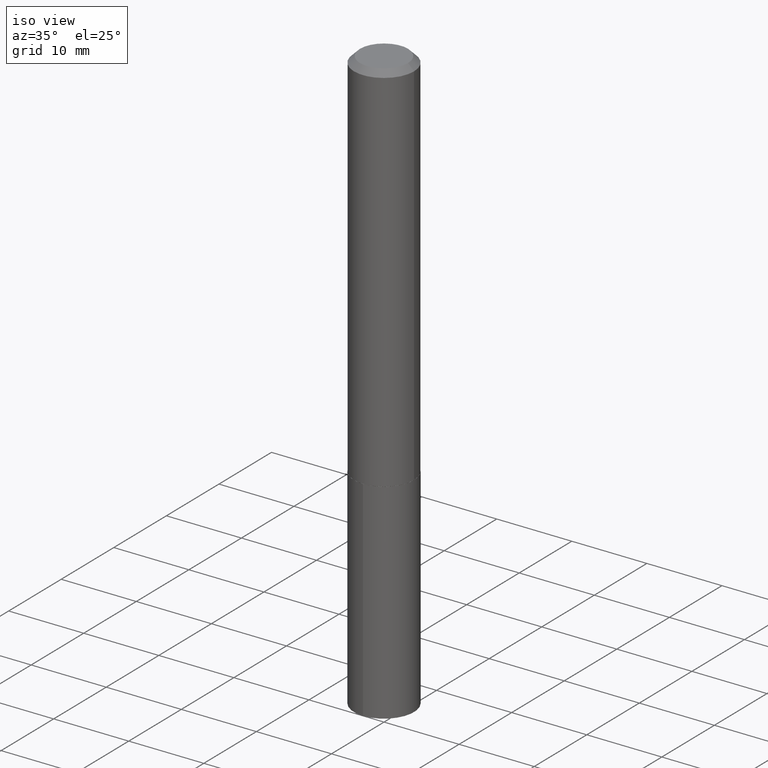
[diagram: clean part render]
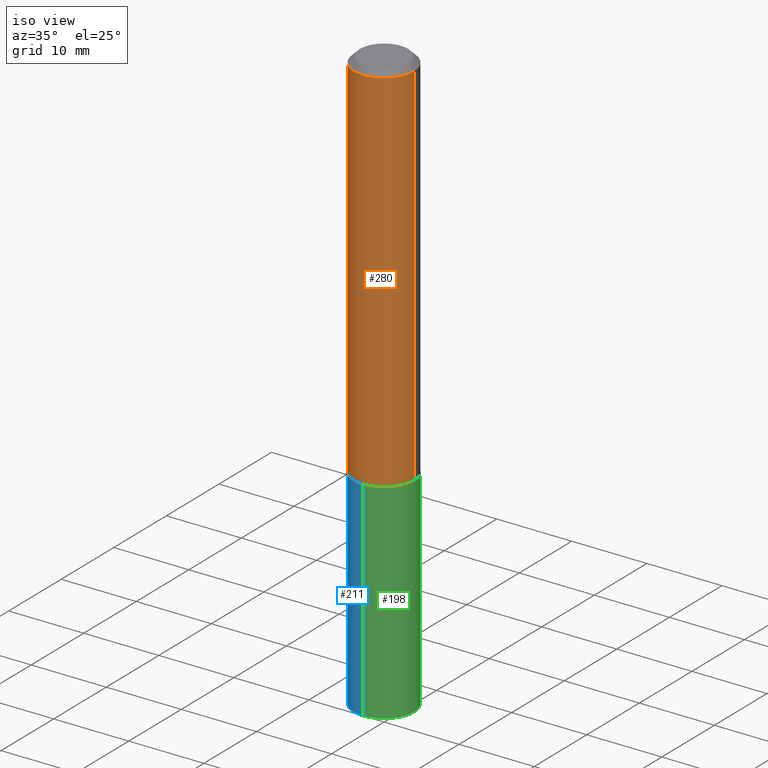
[diagram: same view with three faces highlighted in distinct colors, each labeled with its STEP entity id]
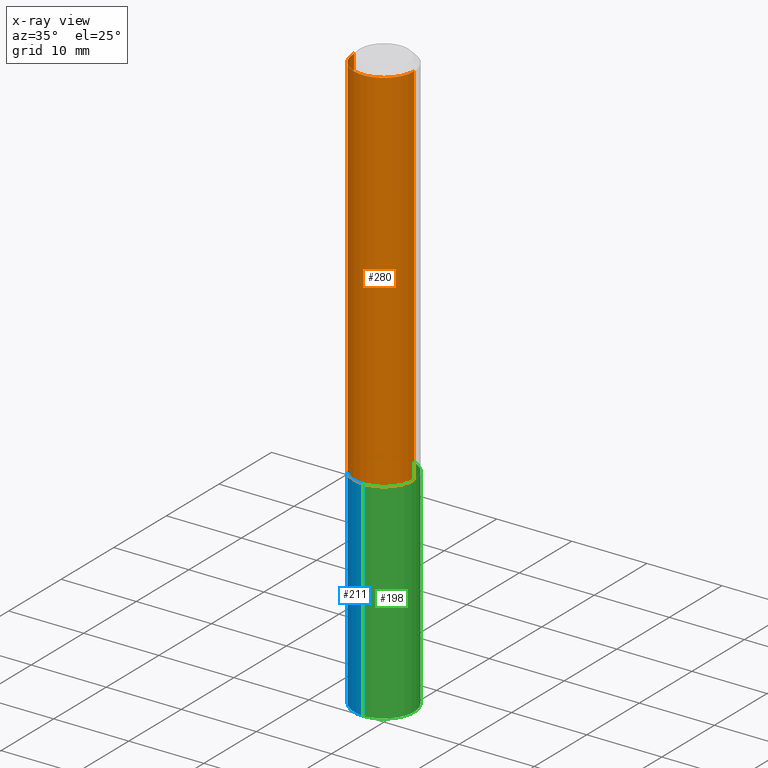
[diagram: x-ray of the same camera — body ghosted, the three highlighted faces saturated]
A machine part, iso view with three faces highlighted in distinct colors.
The next image is the same camera in x-ray (body ghosted, the three faces saturated) — at least one of them is partly hidden behind the body in this view.
Their STEP definitions:

[orange] entity #280 — the highlighted cylindrical surface (partial cylindrical patch) has radius 4.0005 mm, axis along (-0, 0, 1).
#16 = CARTESIAN_POINT ( 'NONE',  ( -0.1575000000000002232, -5.752130466021151811E-15, -1.968000000000000194 ) ) ;
#26 = ORIENTED_EDGE ( 'NONE', *, *, #340, .T. ) ;
#71 = DIRECTION ( 'NONE',  ( 1.000000000000000000, -6.982962677686267499E-15, 4.876176775795936353E-29 ) ) ;
#79 = EDGE_CURVE ( 'NONE', #283, #286, #349, .T. ) ;
#94 = LINE ( 'NONE', #386, #234 ) ;
#101 = EDGE_LOOP ( 'NONE', ( #195, #390, #26, #308 ) ) ;
#136 = VECTOR ( 'NONE', #201, 39.37007874015748143 ) ;
#146 = CARTESIAN_POINT ( 'NONE',  ( 4.812682610572349594E-29, -6.871235274843310993E-15, -1.968000000000000194 ) ) ;
#153 = CARTESIAN_POINT ( 'NONE',  ( 0.1575000000000000011, -1.208925413574435989E-15, -0.03125000000000021511 ) ) ;
#165 = DIRECTION ( 'NONE',  ( 1.000000000000000000, -6.982962677686265922E-15, 0.000000000000000000 ) ) ;
#188 = AXIS2_PLACEMENT_3D ( 'NONE', #146, #265, #322 ) ;
#195 = ORIENTED_EDGE ( 'NONE', *, *, #253, .F. ) ;
#196 = AXIS2_PLACEMENT_3D ( 'NONE', #215, #221, #71 ) ;
#201 = DIRECTION ( 'NONE',  ( -2.445468806185136877E-29, 3.491481338843145188E-15, 1.000000000000000000 ) ) ;
#215 = CARTESIAN_POINT ( 'NONE',  ( 0.000000000000000000, 0.000000000000000000, 0.000000000000000000 ) ) ;
#220 = CYLINDRICAL_SURFACE ( 'NONE', #196, 0.1575000000000000844 ) ;
#221 = DIRECTION ( 'NONE',  ( -2.445468806185136597E-29, 3.491481338843145583E-15, 1.000000000000000000 ) ) ;
#231 = CARTESIAN_POINT ( 'NONE',  ( -0.1575000000000000011, -2.371067224518920865E-15, -0.03125000000000021511 ) ) ;
#233 = CARTESIAN_POINT ( 'NONE',  ( 7.642090019328604414E-31, -1.091087918388490513E-16, -0.03125000000000021511 ) ) ;
#234 = VECTOR ( 'NONE', #358, 39.37007874015748143 ) ;
#253 = EDGE_CURVE ( 'NONE', #283, #372, #94, .T. ) ;
#260 = VERTEX_POINT ( 'NONE', #153 ) ;
#265 = DIRECTION ( 'NONE',  ( -2.445468806185136597E-29, 3.491481338843145583E-15, 1.000000000000000000 ) ) ;
#273 = CARTESIAN_POINT ( 'NONE',  ( 0.1575000000000002232, -7.971051896578899262E-15, -1.968000000000000194 ) ) ;
#280 = ADVANCED_FACE ( 'NONE', ( #330 ), #220, .T. ) ;
#283 = VERTEX_POINT ( 'NONE', #16 ) ;
#286 = VERTEX_POINT ( 'NONE', #273 ) ;
#308 = ORIENTED_EDGE ( 'NONE', *, *, #360, .F. ) ;
#312 = AXIS2_PLACEMENT_3D ( 'NONE', #233, #345, #165 ) ;
#319 = LINE ( 'NONE', #375, #136 ) ;
#322 = DIRECTION ( 'NONE',  ( 1.000000000000000000, -6.982962677686265133E-15, 0.000000000000000000 ) ) ;
#330 = FACE_OUTER_BOUND ( 'NONE', #101, .T. ) ;
#340 = EDGE_CURVE ( 'NONE', #286, #260, #319, .T. ) ;
#345 = DIRECTION ( 'NONE',  ( -2.445468806185136597E-29, 3.491481338843145583E-15, 1.000000000000000000 ) ) ;
#349 = CIRCLE ( 'NONE', #188, 0.1575000000000002232 ) ;
#350 = CIRCLE ( 'NONE', #312, 0.1575000000000000011 ) ;
#358 = DIRECTION ( 'NONE',  ( -2.445468806185136877E-29, 3.491481338843145188E-15, 1.000000000000000000 ) ) ;
#360 = EDGE_CURVE ( 'NONE', #372, #260, #350, .T. ) ;
#372 = VERTEX_POINT ( 'NONE', #231 ) ;
#375 = CARTESIAN_POINT ( 'NONE',  ( 0.1575000000000000844, -1.099816621735587677E-15, 7.679978421878603638E-30 ) ) ;
#386 = CARTESIAN_POINT ( 'NONE',  ( -0.1575000000000000844, 1.119104808822158392E-15, -7.747322767151481189E-30 ) ) ;
#390 = ORIENTED_EDGE ( 'NONE', *, *, #79, .T. ) ;

[blue] entity #211 — the highlighted cylindrical surface (partial cylindrical patch) has radius 4.0005 mm, axis along (-0, 0, 1).
#11 = VECTOR ( 'NONE', #104, 39.37007874015748143 ) ;
#27 = CIRCLE ( 'NONE', #342, 0.1575000000000000011 ) ;
#41 = EDGE_CURVE ( 'NONE', #174, #339, #202, .T. ) ;
#47 = DIRECTION ( 'NONE',  ( -2.445414923348069265E-29, 3.491558502132646561E-15, 1.000000000000000000 ) ) ;
#51 = DIRECTION ( 'NONE',  ( -6.982962677686264344E-15, -1.000000000000000000, 3.469013325287953293E-15 ) ) ;
#55 = EDGE_CURVE ( 'NONE', #362, #174, #27, .T. ) ;
#69 = CIRCLE ( 'NONE', #199, 0.1575000000000000011 ) ;
#74 = EDGE_LOOP ( 'NONE', ( #247, #365, #103, #192 ) ) ;
#83 = CARTESIAN_POINT ( 'NONE',  ( -1.099816621735538768E-15, -0.1575000000000068567, -1.968499999999999472 ) ) ;
#102 = EDGE_CURVE ( 'NONE', #144, #339, #69, .T. ) ;
#103 = ORIENTED_EDGE ( 'NONE', *, *, #41, .T. ) ;
#104 = DIRECTION ( 'NONE',  ( -2.445414923348069265E-29, 3.491558502132646561E-15, 1.000000000000000000 ) ) ;
#115 = DIRECTION ( 'NONE',  ( -2.445414923348069265E-29, 3.491558502132646561E-15, 1.000000000000000000 ) ) ;
#124 = CARTESIAN_POINT ( 'NONE',  ( 1.119104808822232742E-15, 0.1574999999999931177, -1.968500000000000583 ) ) ;
#139 = CARTESIAN_POINT ( 'NONE',  ( 1.119104808822232742E-15, 0.1574999999999893430, -3.067998002192100060 ) ) ;
#140 = DIRECTION ( 'NONE',  ( -2.445414923348069265E-29, 3.491558502132646561E-15, 1.000000000000000000 ) ) ;
#144 = VERTEX_POINT ( 'NONE', #124 ) ;
#156 = VECTOR ( 'NONE', #47, 39.37007874015748143 ) ;
#174 = VERTEX_POINT ( 'NONE', #281 ) ;
#183 = CYLINDRICAL_SURFACE ( 'NONE', #216, 0.1575000000000000011 ) ;
#187 = DIRECTION ( 'NONE',  ( -2.445414923348069265E-29, 3.491558502132646561E-15, 1.000000000000000000 ) ) ;
#192 = ORIENTED_EDGE ( 'NONE', *, *, #102, .F. ) ;
#199 = AXIS2_PLACEMENT_3D ( 'NONE', #344, #115, #315 ) ;
#200 = CARTESIAN_POINT ( 'NONE',  ( 7.502634167727390429E-29, -1.071194261314441830E-14, -3.067998002192099616 ) ) ;
#202 = LINE ( 'NONE', #83, #156 ) ;
#211 = ADVANCED_FACE ( 'NONE', ( #299 ), #183, .T. ) ;
#216 = AXIS2_PLACEMENT_3D ( 'NONE', #258, #187, #277 ) ;
#238 = CARTESIAN_POINT ( 'NONE',  ( -1.099816621735538768E-15, -0.1575000000000068567, -1.968499999999999472 ) ) ;
#247 = ORIENTED_EDGE ( 'NONE', *, *, #366, .F. ) ;
#258 = CARTESIAN_POINT ( 'NONE',  ( 4.813905344975441835E-29, -6.872981015512731707E-15, -1.968500000000000139 ) ) ;
#263 = CARTESIAN_POINT ( 'NONE',  ( 1.119104808822205527E-15, 0.1574999999999931177, -1.968500000000000583 ) ) ;
#277 = DIRECTION ( 'NONE',  ( -6.982962677686264344E-15, -1.000000000000000000, 3.469013325287953293E-15 ) ) ;
#281 = CARTESIAN_POINT ( 'NONE',  ( -1.099816621735512341E-15, -0.1575000000000107425, -3.067998002192099172 ) ) ;
#288 = LINE ( 'NONE', #263, #11 ) ;
#299 = FACE_OUTER_BOUND ( 'NONE', #74, .T. ) ;
#315 = DIRECTION ( 'NONE',  ( -6.982962677686264344E-15, -1.000000000000000000, 3.469013325287953293E-15 ) ) ;
#339 = VERTEX_POINT ( 'NONE', #238 ) ;
#342 = AXIS2_PLACEMENT_3D ( 'NONE', #200, #140, #51 ) ;
#344 = CARTESIAN_POINT ( 'NONE',  ( 4.813905344975441835E-29, -6.872981015512731707E-15, -1.968500000000000139 ) ) ;
#362 = VERTEX_POINT ( 'NONE', #139 ) ;
#365 = ORIENTED_EDGE ( 'NONE', *, *, #55, .T. ) ;
#366 = EDGE_CURVE ( 'NONE', #362, #144, #288, .T. ) ;

[green] entity #198 — the highlighted cylindrical surface (partial cylindrical patch) has radius 4.0005 mm, axis along (-0, 0, 1).
#11 = VECTOR ( 'NONE', #104, 39.37007874015748143 ) ;
#22 = DIRECTION ( 'NONE',  ( -6.982962677686264344E-15, -1.000000000000000000, 3.469013325287953293E-15 ) ) ;
#28 = AXIS2_PLACEMENT_3D ( 'NONE', #57, #177, #138 ) ;
#41 = EDGE_CURVE ( 'NONE', #174, #339, #202, .T. ) ;
#45 = DIRECTION ( 'NONE',  ( -2.445414923348069265E-29, 3.491558502132646561E-15, 1.000000000000000000 ) ) ;
#47 = DIRECTION ( 'NONE',  ( -2.445414923348069265E-29, 3.491558502132646561E-15, 1.000000000000000000 ) ) ;
#57 = CARTESIAN_POINT ( 'NONE',  ( 4.813905344975441835E-29, -6.872981015512731707E-15, -1.968500000000000139 ) ) ;
#82 = DIRECTION ( 'NONE',  ( -6.982962677686264344E-15, -1.000000000000000000, 3.469013325287953293E-15 ) ) ;
#83 = CARTESIAN_POINT ( 'NONE',  ( -1.099816621735538768E-15, -0.1575000000000068567, -1.968499999999999472 ) ) ;
#104 = DIRECTION ( 'NONE',  ( -2.445414923348069265E-29, 3.491558502132646561E-15, 1.000000000000000000 ) ) ;
#112 = EDGE_CURVE ( 'NONE', #339, #144, #222, .T. ) ;
#120 = DIRECTION ( 'NONE',  ( -2.445414923348069265E-29, 3.491558502132646561E-15, 1.000000000000000000 ) ) ;
#124 = CARTESIAN_POINT ( 'NONE',  ( 1.119104808822232742E-15, 0.1574999999999931177, -1.968500000000000583 ) ) ;
#138 = DIRECTION ( 'NONE',  ( -6.982962677686264344E-15, -1.000000000000000000, 3.469013325287953293E-15 ) ) ;
#139 = CARTESIAN_POINT ( 'NONE',  ( 1.119104808822232742E-15, 0.1574999999999893430, -3.067998002192100060 ) ) ;
#142 = CIRCLE ( 'NONE', #228, 0.1575000000000000011 ) ;
#144 = VERTEX_POINT ( 'NONE', #124 ) ;
#148 = ORIENTED_EDGE ( 'NONE', *, *, #380, .T. ) ;
#155 = CARTESIAN_POINT ( 'NONE',  ( 4.813905344975441835E-29, -6.872981015512731707E-15, -1.968500000000000139 ) ) ;
#156 = VECTOR ( 'NONE', #47, 39.37007874015748143 ) ;
#161 = AXIS2_PLACEMENT_3D ( 'NONE', #155, #120, #22 ) ;
#174 = VERTEX_POINT ( 'NONE', #281 ) ;
#177 = DIRECTION ( 'NONE',  ( -2.445414923348069265E-29, 3.491558502132646561E-15, 1.000000000000000000 ) ) ;
#198 = ADVANCED_FACE ( 'NONE', ( #325 ), #383, .T. ) ;
#202 = LINE ( 'NONE', #83, #156 ) ;
#222 = CIRCLE ( 'NONE', #28, 0.1575000000000000011 ) ;
#225 = EDGE_LOOP ( 'NONE', ( #148, #334, #335, #232 ) ) ;
#228 = AXIS2_PLACEMENT_3D ( 'NONE', #293, #45, #82 ) ;
#232 = ORIENTED_EDGE ( 'NONE', *, *, #41, .F. ) ;
#238 = CARTESIAN_POINT ( 'NONE',  ( -1.099816621735538768E-15, -0.1575000000000068567, -1.968499999999999472 ) ) ;
#263 = CARTESIAN_POINT ( 'NONE',  ( 1.119104808822205527E-15, 0.1574999999999931177, -1.968500000000000583 ) ) ;
#281 = CARTESIAN_POINT ( 'NONE',  ( -1.099816621735512341E-15, -0.1575000000000107425, -3.067998002192099172 ) ) ;
#288 = LINE ( 'NONE', #263, #11 ) ;
#293 = CARTESIAN_POINT ( 'NONE',  ( 7.502634167727390429E-29, -1.071194261314441830E-14, -3.067998002192099616 ) ) ;
#325 = FACE_OUTER_BOUND ( 'NONE', #225, .T. ) ;
#334 = ORIENTED_EDGE ( 'NONE', *, *, #366, .T. ) ;
#335 = ORIENTED_EDGE ( 'NONE', *, *, #112, .F. ) ;
#339 = VERTEX_POINT ( 'NONE', #238 ) ;
#362 = VERTEX_POINT ( 'NONE', #139 ) ;
#366 = EDGE_CURVE ( 'NONE', #362, #144, #288, .T. ) ;
#380 = EDGE_CURVE ( 'NONE', #174, #362, #142, .T. ) ;
#383 = CYLINDRICAL_SURFACE ( 'NONE', #161, 0.1575000000000000011 ) ;